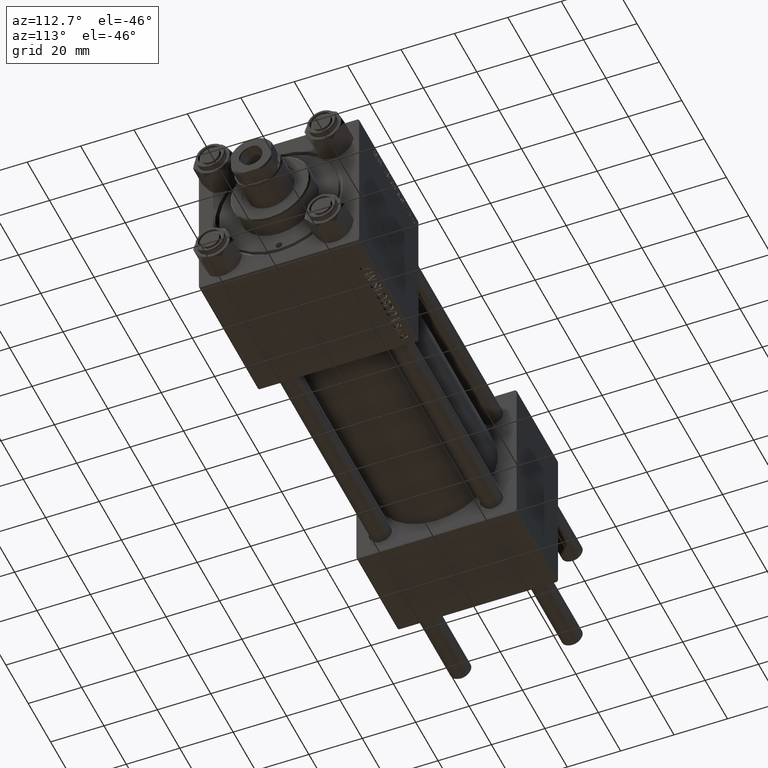
[diagram: clean part render]
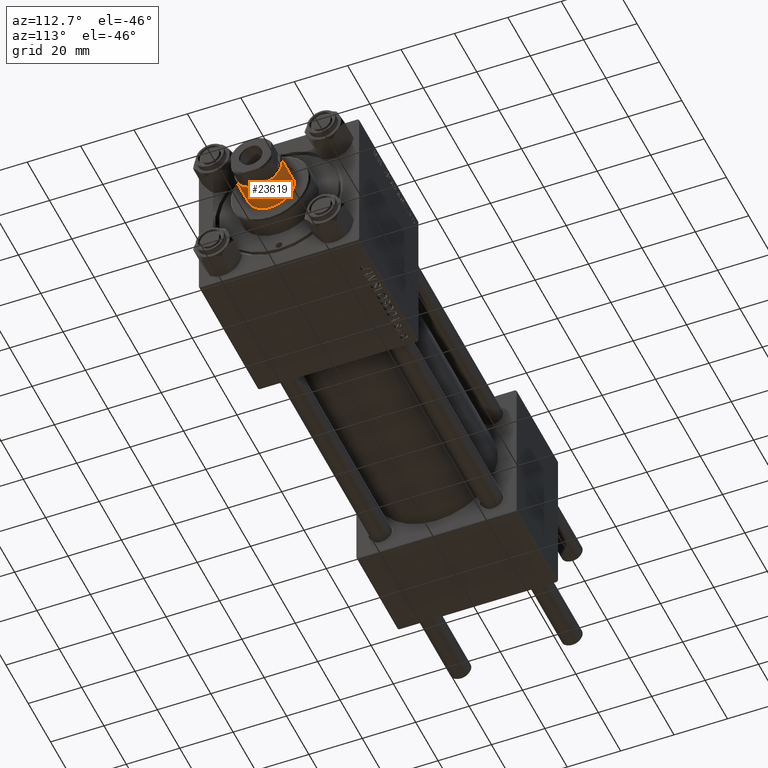
[diagram: same view with one face highlighted and labeled with its STEP entity id]
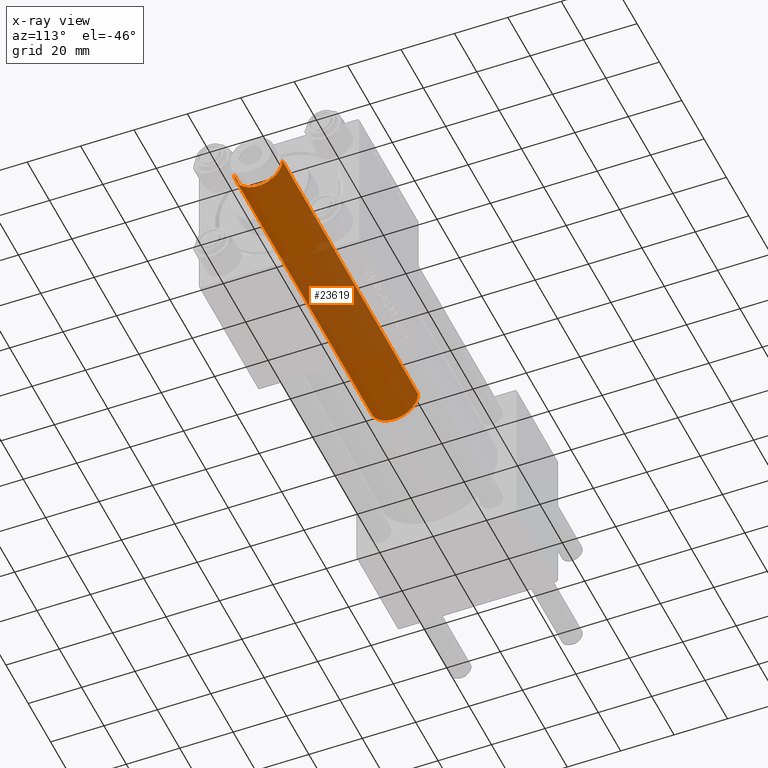
[diagram: x-ray of the same camera — body ghosted, the highlighted face saturated]
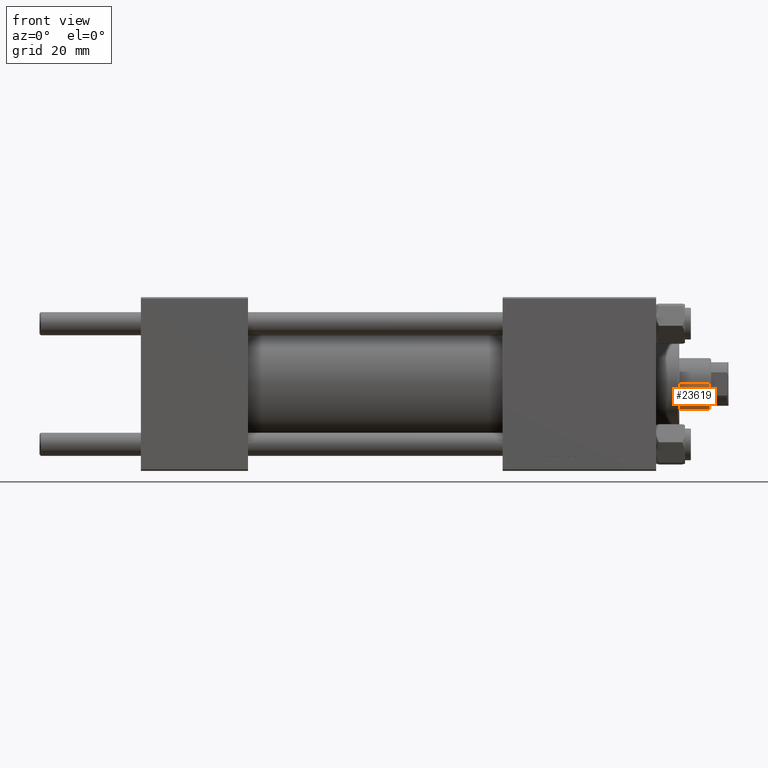
[diagram: same view with one face highlighted and labeled with its STEP entity id]
A machine part, auxiliary view. The second image highlights one B-rep face of the part: STEP entity #23619.
The next image is the same camera in x-ray: the body ghosted, the highlighted face saturated — about 45% of this face is hidden behind the body in this view.
A second angle (front view) of the same face is appended — the face is thin or edge-on in the first view.
In plain terms, the highlighted cylindrical surface (edge-blend (fillet) strip) has radius 9 mm, axis along (-1, 0, 0).
Its self-contained STEP definition (entity closure, byte-faithful):
#582 = DIRECTION ( 'NONE',  ( 1.000000000000000000, 0.000000000000000000, 0.000000000000000000 ) ) ;
#861 = EDGE_CURVE ( 'NONE', #28953, #28817, #38064, .T. ) ;
#949 = AXIS2_PLACEMENT_3D ( 'NONE', #7787, #30052, #15131 ) ;
#1731 = DIRECTION ( 'NONE',  ( -0.000000000000000000, -0.000000000000000000, -1.000000000000000000 ) ) ;
#3494 = EDGE_CURVE ( 'NONE', #28953, #13278, #35617, .T. ) ;
#7606 = AXIS2_PLACEMENT_3D ( 'NONE', #19166, #34868, #34119 ) ;
#7787 = CARTESIAN_POINT ( 'NONE',  ( 0.000000000000000000, 0.000000000000000000, 160.0000000000000000 ) ) ;
#8945 = AXIS2_PLACEMENT_3D ( 'NONE', #16249, #31688, #582 ) ;
#9711 = EDGE_CURVE ( 'NONE', #13278, #43323, #13878, .T. ) ;
#12658 = CARTESIAN_POINT ( 'NONE',  ( 9.000000000000000000, 1.102182119232617517E-15, 38.00000000000000000 ) ) ;
#13182 = VECTOR ( 'NONE', #1731, 1000.000000000000000 ) ;
#13278 = VERTEX_POINT ( 'NONE', #32961 ) ;
#13878 = LINE ( 'NONE', #17672, #13182 ) ;
#15131 = DIRECTION ( 'NONE',  ( -1.000000000000000000, 0.000000000000000000, 0.000000000000000000 ) ) ;
#15959 = ORIENTED_EDGE ( 'NONE', *, *, #3494, .T. ) ;
#15975 = CARTESIAN_POINT ( 'NONE',  ( -9.000000000000000000, 0.000000000000000000, 38.00000000000000000 ) ) ;
#16249 = CARTESIAN_POINT ( 'NONE',  ( 0.000000000000000000, 0.000000000000000000, 159.5000000000000853 ) ) ;
#17672 = CARTESIAN_POINT ( 'NONE',  ( 9.000000000000000000, 1.102182119232617517E-15, 160.0000000000000000 ) ) ;
#19166 = CARTESIAN_POINT ( 'NONE',  ( 0.000000000000000000, 0.000000000000000000, 38.00000000000000000 ) ) ;
#23619 = ADVANCED_FACE ( 'NONE', ( #37659 ), #49542, .T. ) ;
#28817 = VERTEX_POINT ( 'NONE', #15975 ) ;
#28953 = VERTEX_POINT ( 'NONE', #30112 ) ;
#30052 = DIRECTION ( 'NONE',  ( -0.000000000000000000, -0.000000000000000000, -1.000000000000000000 ) ) ;
#30112 = CARTESIAN_POINT ( 'NONE',  ( -9.000000000000000000, 0.000000000000000000, 159.5000000000000853 ) ) ;
#30958 = DIRECTION ( 'NONE',  ( -0.000000000000000000, -0.000000000000000000, -1.000000000000000000 ) ) ;
#31688 = DIRECTION ( 'NONE',  ( 0.000000000000000000, 0.000000000000000000, -1.000000000000000000 ) ) ;
#32906 = EDGE_CURVE ( 'NONE', #43323, #28817, #33464, .T. ) ;
#32961 = CARTESIAN_POINT ( 'NONE',  ( 9.000000000000000000, 1.102182119232617517E-15, 159.5000000000000853 ) ) ;
#33464 = CIRCLE ( 'NONE', #7606, 9.000000000000000000 ) ;
#34119 = DIRECTION ( 'NONE',  ( 1.000000000000000000, 0.000000000000000000, 0.000000000000000000 ) ) ;
#34725 = VECTOR ( 'NONE', #30958, 1000.000000000000000 ) ;
#34868 = DIRECTION ( 'NONE',  ( 0.000000000000000000, 0.000000000000000000, 1.000000000000000000 ) ) ;
#35617 = CIRCLE ( 'NONE', #8945, 9.000000000000000000 ) ;
#37659 = FACE_OUTER_BOUND ( 'NONE', #45118, .T. ) ;
#38064 = LINE ( 'NONE', #42103, #34725 ) ;
#42103 = CARTESIAN_POINT ( 'NONE',  ( -9.000000000000000000, 0.000000000000000000, 160.0000000000000000 ) ) ;
#43323 = VERTEX_POINT ( 'NONE', #12658 ) ;
#44016 = ORIENTED_EDGE ( 'NONE', *, *, #9711, .T. ) ;
#45118 = EDGE_LOOP ( 'NONE', ( #15959, #44016, #49812, #48925 ) ) ;
#48925 = ORIENTED_EDGE ( 'NONE', *, *, #861, .F. ) ;
#49542 = CYLINDRICAL_SURFACE ( 'NONE', #949, 9.000000000000000000 ) ;
#49812 = ORIENTED_EDGE ( 'NONE', *, *, #32906, .T. ) ;